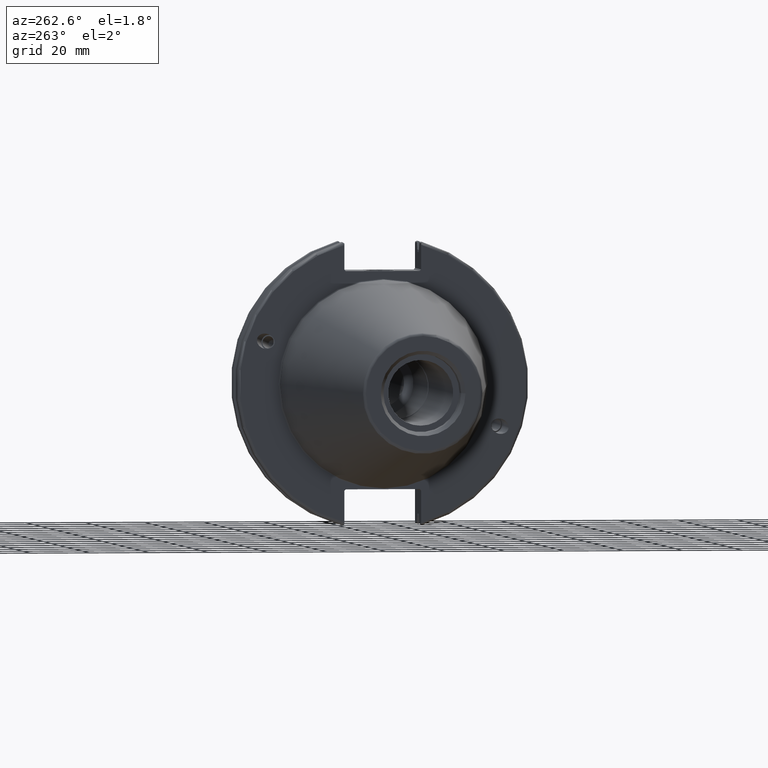
[diagram: clean part render]
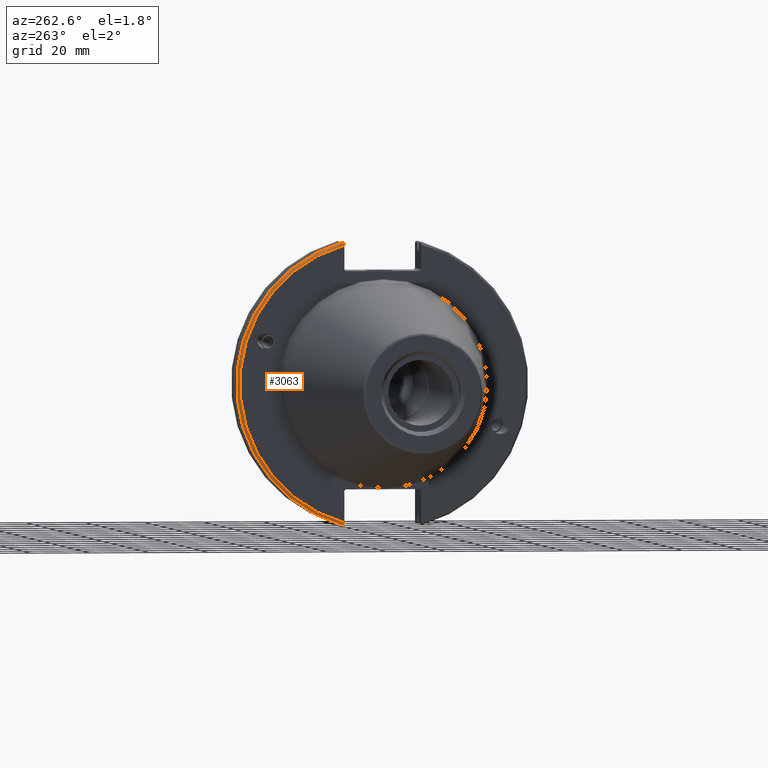
[diagram: same view with one face highlighted and labeled with its STEP entity id]
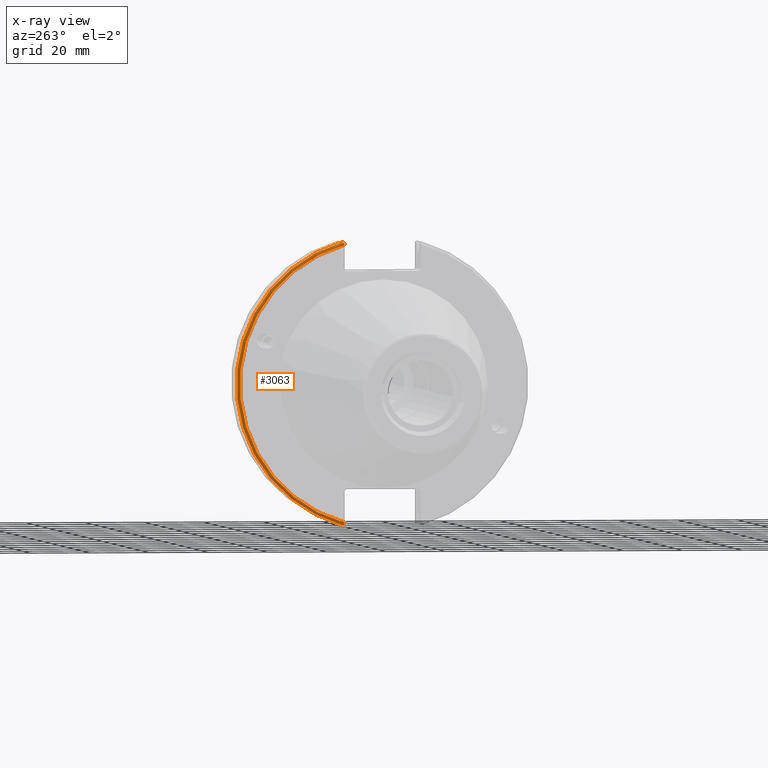
[diagram: x-ray of the same camera — body ghosted, the highlighted face saturated]
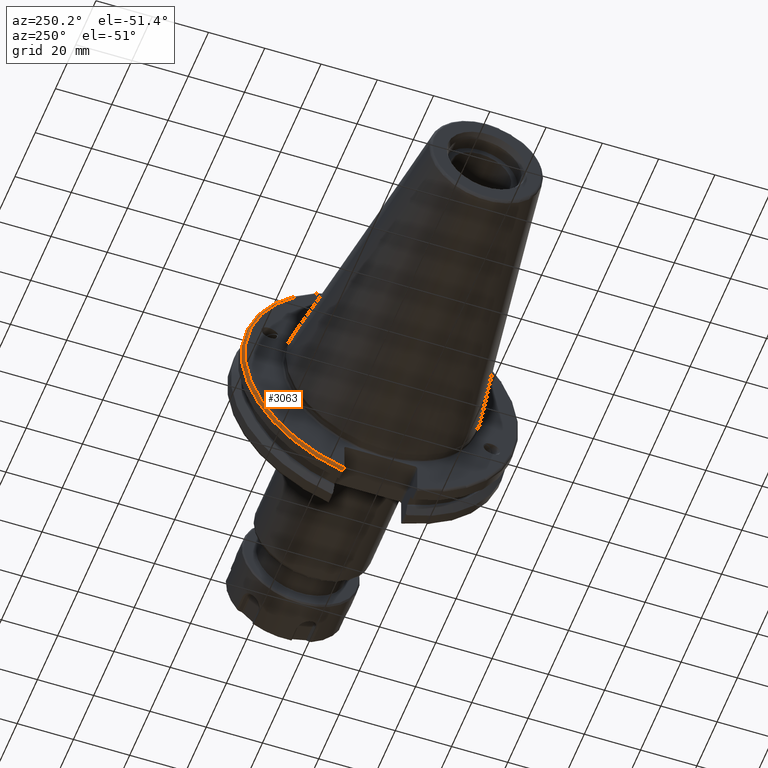
[diagram: same view with one face highlighted and labeled with its STEP entity id]
A machine part, auxiliary view. The second image highlights one B-rep face of the part: STEP entity #3063.
The next image is the same camera in x-ray: the body ghosted, the highlighted face saturated — about 0% of this face is hidden behind the body in this view.
A second angle (auxiliary view) of the same face is appended — the face is thin or edge-on in the first view.
In plain terms, the highlighted toroidal blend (fillet) surface has major radius 48.2125 mm and minor (blend) radius 1 mm.
Its self-contained STEP definition (entity closure, byte-faithful):
#59=TOROIDAL_SURFACE('',#3387,48.2125,1.);
#222=B_SPLINE_CURVE_WITH_KNOTS('',3,(#5247,#5248,#5249,#5250,#5251,#5252),
 .UNSPECIFIED.,.F.,.F.,(4,2,4),(0.0976892167532858,0.112000071948292,0.150881870548587),
 .UNSPECIFIED.);
#231=B_SPLINE_CURVE_WITH_KNOTS('',3,(#5364,#5365,#5366,#5367,#5368,#5369,
#5370,#5371),.UNSPECIFIED.,.F.,.F.,(4,2,2,4),(-0.104075769062722,-0.0730268503455479,
-0.0343639873656265,0.),.UNSPECIFIED.);
#232=B_SPLINE_CURVE_WITH_KNOTS('',3,(#5374,#5375,#5376,#5377,#5378,#5379,
#5380,#5381),.UNSPECIFIED.,.F.,.F.,(4,2,2,4),(0.,0.0343639873656266,0.0730268503455482,
0.104075769062722),.UNSPECIFIED.);
#233=B_SPLINE_CURVE_WITH_KNOTS('',3,(#5382,#5383,#5384,#5385,#5386,#5387),
 .UNSPECIFIED.,.F.,.F.,(4,2,4),(0.452859340315923,0.491741138916218,0.506051994111224),
 .UNSPECIFIED.);
#343=FACE_OUTER_BOUND('',#530,.T.);
#530=EDGE_LOOP('',(#2371,#2372,#2373,#2374,#2375,#2376));
#1108=CIRCLE('',#3369,48.2125);
#1115=CIRCLE('',#3388,49.2125);
#1339=VERTEX_POINT('',#5183);
#1340=VERTEX_POINT('',#5185);
#1353=VERTEX_POINT('',#5246);
#1369=VERTEX_POINT('',#5362);
#1370=VERTEX_POINT('',#5363);
#1371=VERTEX_POINT('',#5372);
#1697=EDGE_CURVE('',#1340,#1339,#1108,.T.);
#1715=EDGE_CURVE('',#1353,#1340,#222,.T.);
#1744=EDGE_CURVE('',#1369,#1370,#231,.T.);
#1745=EDGE_CURVE('',#1370,#1371,#1115,.T.);
#1746=EDGE_CURVE('',#1371,#1353,#232,.T.);
#1747=EDGE_CURVE('',#1339,#1369,#233,.T.);
#2371=ORIENTED_EDGE('',*,*,#1744,.T.);
#2372=ORIENTED_EDGE('',*,*,#1745,.T.);
#2373=ORIENTED_EDGE('',*,*,#1746,.T.);
#2374=ORIENTED_EDGE('',*,*,#1715,.T.);
#2375=ORIENTED_EDGE('',*,*,#1697,.T.);
#2376=ORIENTED_EDGE('',*,*,#1747,.T.);
#3063=ADVANCED_FACE('',(#343),#59,.T.);
#3369=AXIS2_PLACEMENT_3D('',#5186,#3902,#3903);
#3387=AXIS2_PLACEMENT_3D('',#5361,#3959,#3960);
#3388=AXIS2_PLACEMENT_3D('',#5373,#3961,#3962);
#3902=DIRECTION('center_axis',(1.,0.,0.));
#3903=DIRECTION('ref_axis',(0.,1.,-6.12323399573677E-17));
#3959=DIRECTION('center_axis',(1.,0.,0.));
#3960=DIRECTION('ref_axis',(0.,0.,-1.));
#3961=DIRECTION('center_axis',(-1.,0.,0.));
#3962=DIRECTION('ref_axis',(0.,1.,-6.12323399573677E-17));
#5183=CARTESIAN_POINT('',(3.175,12.95,46.4407434937254));
#5185=CARTESIAN_POINT('',(3.175,12.95,-46.4407434937254));
#5186=CARTESIAN_POINT('Origin',(3.175,0.,0.));
#5246=CARTESIAN_POINT('',(3.31949794294344,12.95,-46.9780755322918));
#5247=CARTESIAN_POINT('Ctrl Pts',(3.31949794294344,12.95,-46.9780755322918));
#5248=CARTESIAN_POINT('Ctrl Pts',(3.29341556483839,12.95,-46.9333752207329));
#5249=CARTESIAN_POINT('Ctrl Pts',(3.27115672912336,12.95,-46.887363294568));
#5250=CARTESIAN_POINT('Ctrl Pts',(3.20453530071253,12.95,-46.7230464903732));
#5251=CARTESIAN_POINT('Ctrl Pts',(3.175,12.95,-46.5703494890597));
#5252=CARTESIAN_POINT('Ctrl Pts',(3.175,12.95,-46.4407434937254));
#5361=CARTESIAN_POINT('Origin',(4.175,0.,0.));
#5362=CARTESIAN_POINT('',(3.31949794294344,12.95,46.9780755322918));
#5363=CARTESIAN_POINT('',(4.175,13.4317035994433,47.3440544806494));
#5364=CARTESIAN_POINT('Ctrl Pts',(3.31949794294344,12.95,46.9780755322918));
#5365=CARTESIAN_POINT('Ctrl Pts',(3.36785032278754,13.0300321736484,47.0388807469102));
#5366=CARTESIAN_POINT('Ctrl Pts',(3.43235971798504,13.1083611826073,47.0983919657547));
#5367=CARTESIAN_POINT('Ctrl Pts',(3.58507512107923,13.2478194810695,47.2043467509586));
#5368=CARTESIAN_POINT('Ctrl Pts',(3.70638116490965,13.3242014686233,47.2623787015413));
#5369=CARTESIAN_POINT('Ctrl Pts',(3.92661103245834,13.4067722493645,47.3251126473446));
#5370=CARTESIAN_POINT('Ctrl Pts',(4.06045337544791,13.4317035994433,47.3440544806494));
#5371=CARTESIAN_POINT('Ctrl Pts',(4.175,13.4317035994433,47.3440544806494));
#5372=CARTESIAN_POINT('',(4.175,13.4317035994433,-47.3440544806494));
#5373=CARTESIAN_POINT('Origin',(4.175,0.,0.));
#5374=CARTESIAN_POINT('Ctrl Pts',(4.175,13.4317035994433,-47.3440544806494));
#5375=CARTESIAN_POINT('Ctrl Pts',(4.06045337544791,13.4317035994433,-47.3440544806494));
#5376=CARTESIAN_POINT('Ctrl Pts',(3.92661103245834,13.4067722493645,-47.3251126473446));
#5377=CARTESIAN_POINT('Ctrl Pts',(3.70638116490964,13.3242014686232,-47.2623787015413));
#5378=CARTESIAN_POINT('Ctrl Pts',(3.58507512107923,13.2478194810695,-47.2043467509586));
#5379=CARTESIAN_POINT('Ctrl Pts',(3.43235971798504,13.1083611826073,-47.0983919657547));
#5380=CARTESIAN_POINT('Ctrl Pts',(3.36785032278754,13.0300321736484,-47.0388807469102));
#5381=CARTESIAN_POINT('Ctrl Pts',(3.31949794294344,12.95,-46.9780755322918));
#5382=CARTESIAN_POINT('Ctrl Pts',(3.175,12.95,46.4407434937254));
#5383=CARTESIAN_POINT('Ctrl Pts',(3.175,12.95,46.5703494890597));
#5384=CARTESIAN_POINT('Ctrl Pts',(3.20453530071253,12.95,46.7230464903732));
#5385=CARTESIAN_POINT('Ctrl Pts',(3.27115672912336,12.95,46.887363294568));
#5386=CARTESIAN_POINT('Ctrl Pts',(3.29341556483839,12.95,46.9333752207329));
#5387=CARTESIAN_POINT('Ctrl Pts',(3.31949794294344,12.95,46.9780755322918));